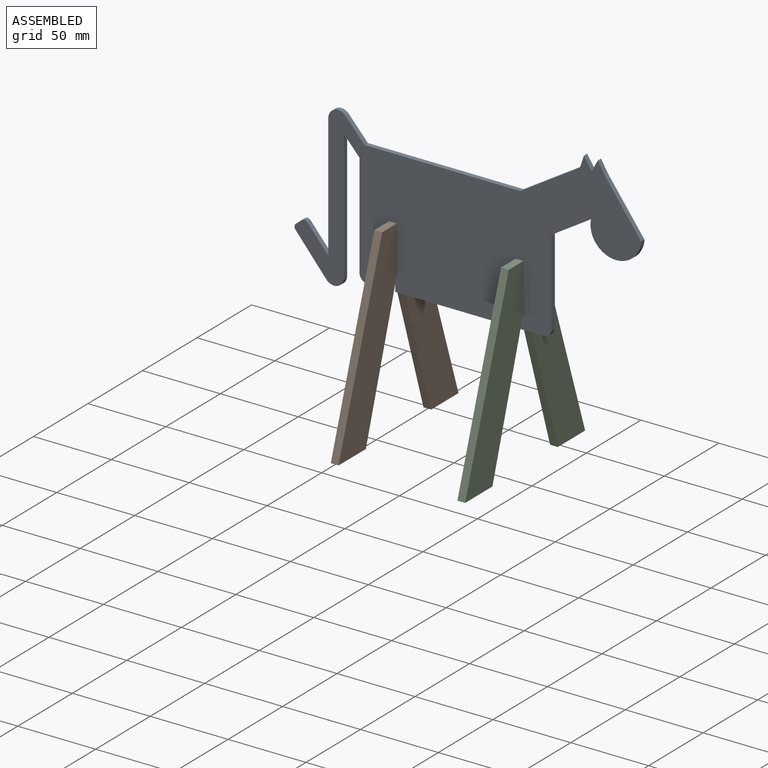
[diagram: assembled view]
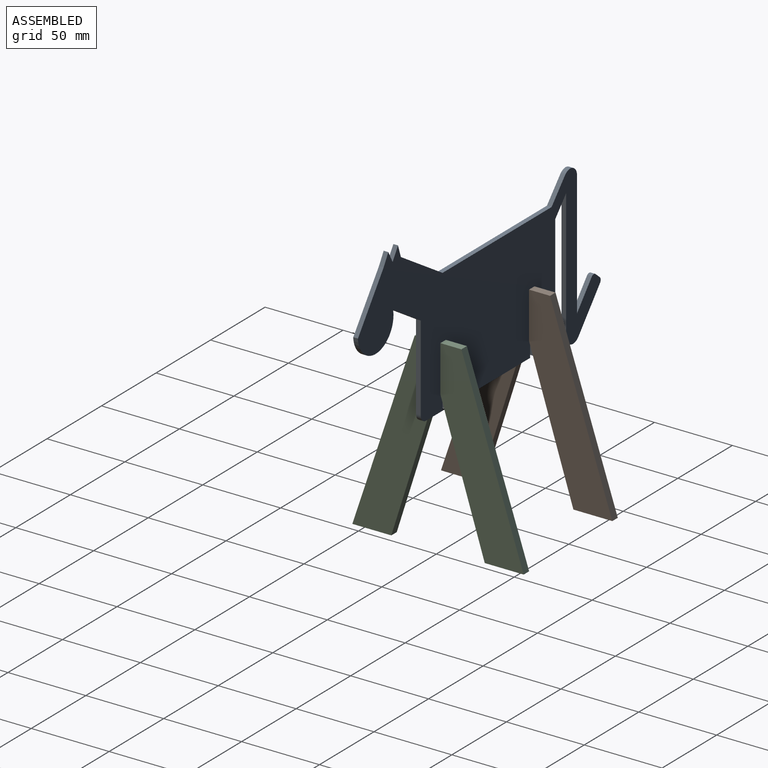
[diagram: assembled view, second angle]
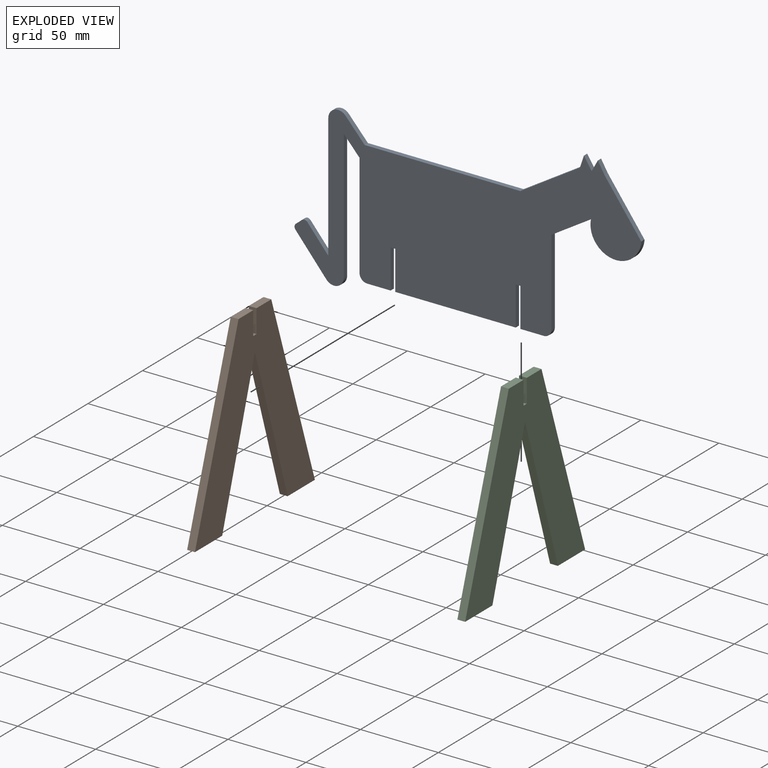
[diagram: exploded view]
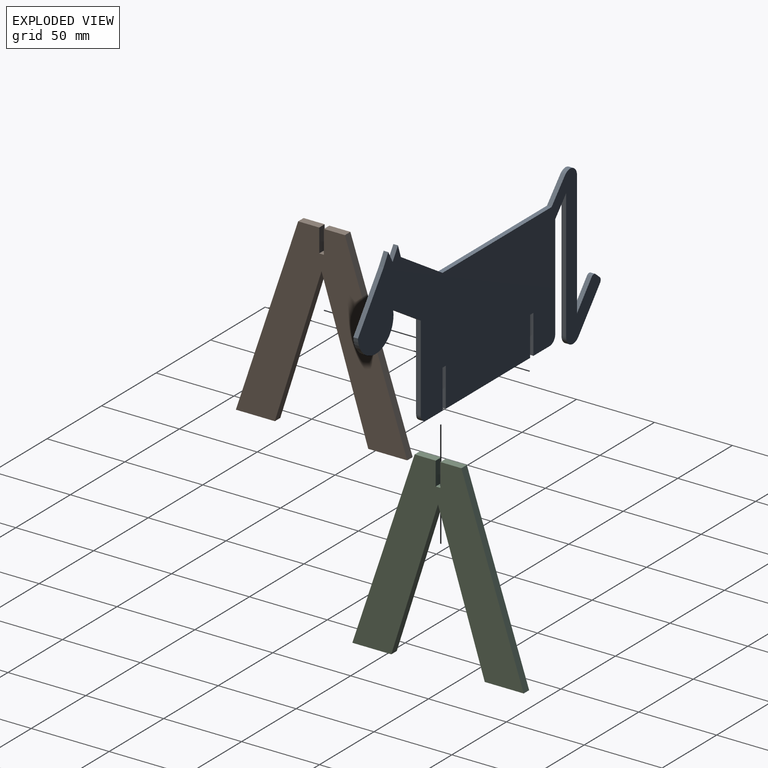
[diagram: exploded view, second angle]
ASSEMBLY  parts=3 mates=3
PART A: 36 faces, bbox 222.7x3x118.4 mm
  f0: plane 15x3mm, normal (0,0,-1), area 45mm2, adj f1,f33,f34,f35
  f1: plane 25x3mm, normal (1,0,0), area 75mm2, adj f0,f2,f34,f35
  f2: plane 3x3mm, normal (0,0,-1), area 9mm2, adj f1,f3,f34,f35
  f3: plane 25x3mm, normal (-1,0,0), area 75mm2, adj f2,f4,f34,f35
  f4: plane 77.33x3mm, normal (0,0,-1), area 232mm2, adj f3,f5,f34,f35
  f5: plane 25x3mm, normal (1,0,0), area 75mm2, adj f4,f6,f34,f35
  f6: plane 3x3mm, normal (0,0,-1), area 9mm2, adj f5,f7,f34,f35
  f7: plane 25x3mm, normal (-1,0,0), area 75mm2, adj f6,f8,f34,f35
  f8: plane 15x3mm, normal (0,0,-1), area 45mm2, adj f7,f9,f34,f35
  f9: cylinder r=5mm len=5mm, axis (0,1,0), area 23.6mm2, adj f8,f10,f34,f35
  f10: plane 55x3mm, normal (1,0,0), area 165mm2, adj f9,f11,f34,f35
  f11: plane 25.24x15.71mm, normal (0.53,0,-0.85), area 89.2mm2, adj f10,f12,f34,f35
  f12: cylinder r=16.37mm len=32.71mm, axis (0,1,0), area 159.7mm2, adj f11,f13,f34,f35
  f13: plane 3x0.1mm, normal (-0.59,0,0.81), area 0.4mm2, adj f12,f14,f34,f35
  f14: plane 32.3x23.6mm, normal (0.81,0,0.59), area 120mm2, adj f13,f15,f34,f35
  f15: plane 7.25x4.28mm, normal (0.86,0,0.51), area 25.3mm2, adj f14,f16,f34,f35
  f16: plane 7.25x3.95mm, normal (-0.88,0,0.48), area 24.8mm2, adj f15,f17,f34,f35
  f17: plane 7.75x4.93mm, normal (0.84,0,0.54), area 27.6mm2, adj f16,f18,f34,f35
  f18: plane 7.75x3mm, normal (-0.95,0,0.32), area 24.5mm2, adj f17,f19,f34,f35
  f19: plane 38.2x23.78mm, normal (-0.53,0,0.85), area 135mm2, adj f18,f20,f34,f35
  f20: plane 100x3mm, normal (0,0,1), area 300mm2, adj f19,f21,f34,f35
  f21: plane 13.7x12.25mm, normal (0.75,0,0.67), area 55.1mm2, adj f20,f22,f34,f35
  f22: cylinder r=6.35mm len=11.08mm, axis (0,1,0), area 45.9mm2, adj f21,f23,f34,f35
  f23: plane 80x3mm, normal (-1,0,0), area 240mm2, adj f22,f24,f34,f35
  f24: plane 15.98x13.45mm, normal (0.76,0,0.64), area 62.7mm2, adj f23,f25,f34,f35
  f25: cylinder r=2.48mm len=3.49mm, axis (0,1,0), area 11.7mm2, adj f24,f26,f34,f35
  f26: plane 3.86x3.25mm, normal (-0.64,0,0.76), area 15.1mm2, adj f25,f27,f34,f35
  f27: cylinder r=2.48mm len=3.49mm, axis (0,1,0), area 11.7mm2, adj f26,f28,f34,f35
  f28: plane 23.62x19.9mm, normal (-0.76,0,-0.64), area 92.7mm2, adj f27,f29,f34,f35
  f29: cylinder r=6.35mm len=11.21mm, axis (0,1,0), area 46.5mm2, adj f28,f30,f34,f35
  f30: plane 83.44x3mm, normal (1,0,0), area 250.3mm2, adj f29,f31,f34,f35
  f31: plane 11.18x10mm, normal (-0.75,0,-0.67), area 45mm2, adj f30,f32,f34,f35
  f32: plane 66.73x3mm, normal (-1,0,0), area 200.2mm2, adj f31,f33,f34,f35
  f33: cylinder r=5mm len=5mm, axis (0,1,0), area 23.6mm2, adj f0,f32,f34,f35
  f34: plane 222.69x118.41mm, normal (0,-1,0), area 13160.4mm2, adj f0,f1,f2,f3,f4,f5,f6,f7
  f35: plane 222.69x118.41mm, normal (0,1,0), area 13160.4mm2, adj f0,f1,f2,f3,f4,f5,f6,f7
PART B: 13 faces, bbox 110x5x120 mm
  f0: plane 95x30mm, normal (0.95,0,-0.3), area 498.1mm2, adj f1,f10,f11,f12
  f1: plane 95x30mm, normal (-0.95,0,-0.3), area 498.1mm2, adj f0,f2,f11,f12
  f2: plane 25x5mm, normal (0,0,-1), area 125mm2, adj f1,f3,f11,f12
  f3: plane 120x40mm, normal (0.95,0,0.32), area 632.5mm2, adj f2,f4,f11,f12
  f4: plane 13.5x5mm, normal (0,0,1), area 67.5mm2, adj f3,f5,f11,f12
  f5: plane 15x5mm, normal (-1,0,0), area 75mm2, adj f4,f6,f11,f12
  f6: plane 5x3mm, normal (0,0,1), area 15mm2, adj f5,f7,f11,f12
  f7: plane 15x5mm, normal (1,0,0), area 75mm2, adj f6,f8,f11,f12
  f8: plane 13.5x5mm, normal (0,0,1), area 67.5mm2, adj f7,f9,f11,f12
  f9: plane 120x40mm, normal (-0.95,0,0.32), area 632.5mm2, adj f8,f10,f11,f12
  f10: plane 25x5mm, normal (0,0,-1), area 125mm2, adj f0,f9,f11,f12
  f11: plane 120x110mm, normal (0,-1,0), area 5505mm2, adj f0,f1,f2,f3,f4,f5,f6,f7
  f12: plane 120x110mm, normal (0,1,0), area 5505mm2, adj f0,f1,f2,f3,f4,f5,f6,f7
PART C: same geometry as B
PLACE A rot(axis=(-1,0,0),0deg) t=(142.11,-60.49,-54.25)mm
PLACE B rot(axis=(0,0,-1),90deg) t=(42.83,-61.99,-74.25)mm
PLACE C rot(axis=(0,0,-1),90deg) t=(124.11,-61.99,-74.25)mm
MATE planar C.f6 <-> A.f2  axis (0,0,1) through (121.61,-61.99,-29.25)mm
MATE planar C.f11 <-> A.f5  axis (-1,0,0) through (119.11,-61.99,-39.25)mm
MATE planar A.f34 <-> C.f5  axis (0,-1,0) through (80.44,-63.49,-54.25)mm
